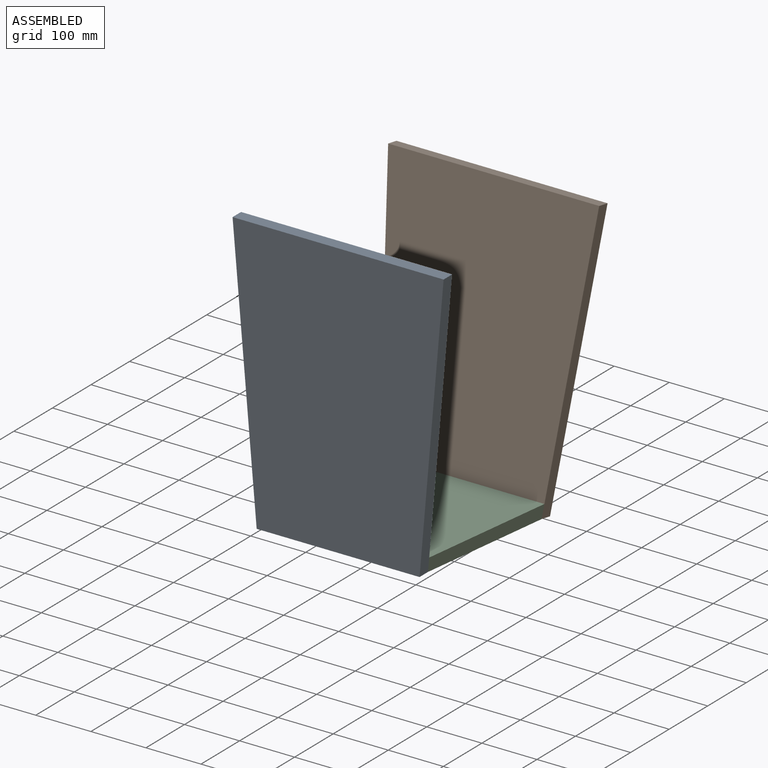
[diagram: assembled view]
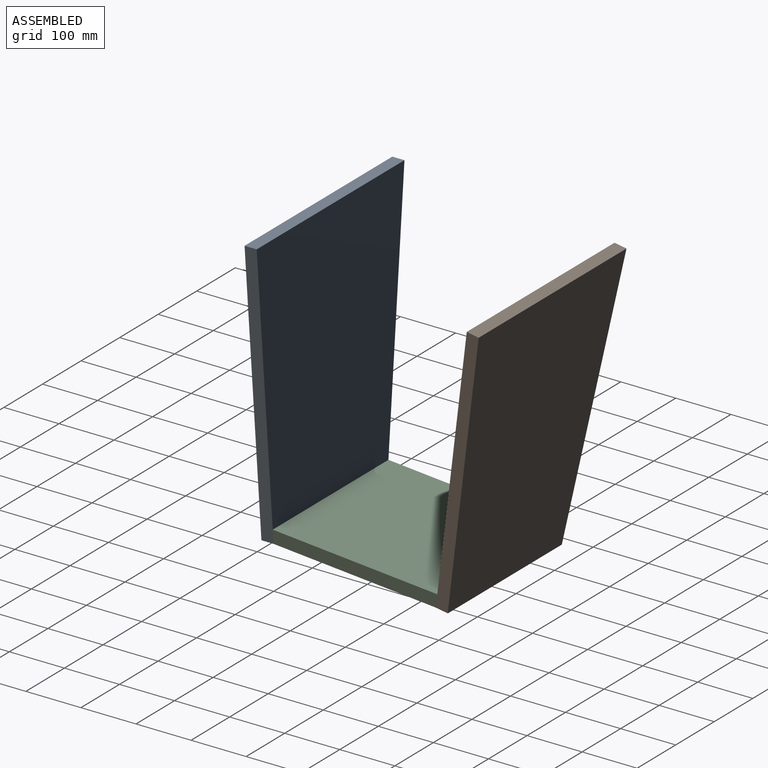
[diagram: assembled view, second angle]
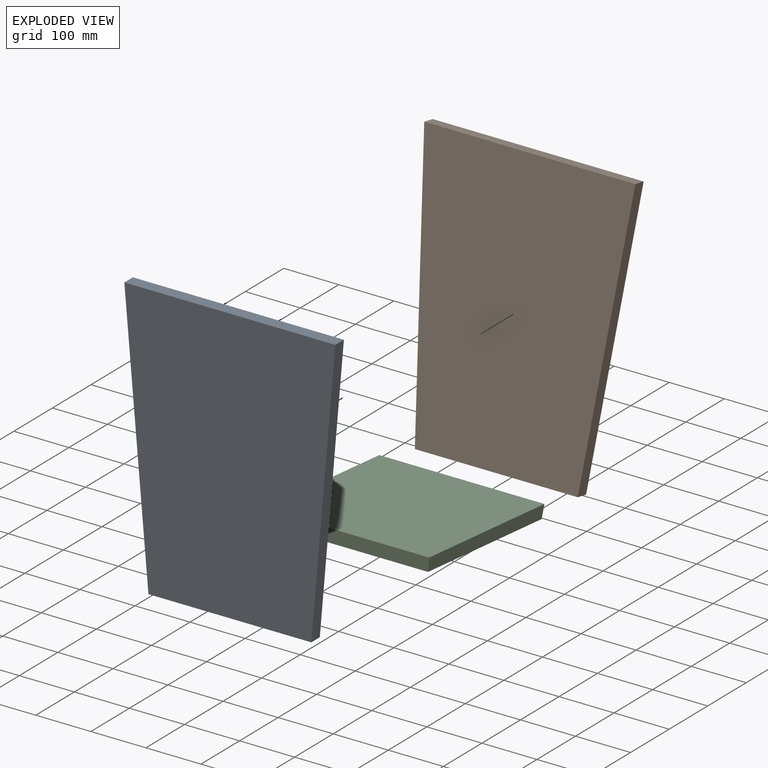
[diagram: exploded view]
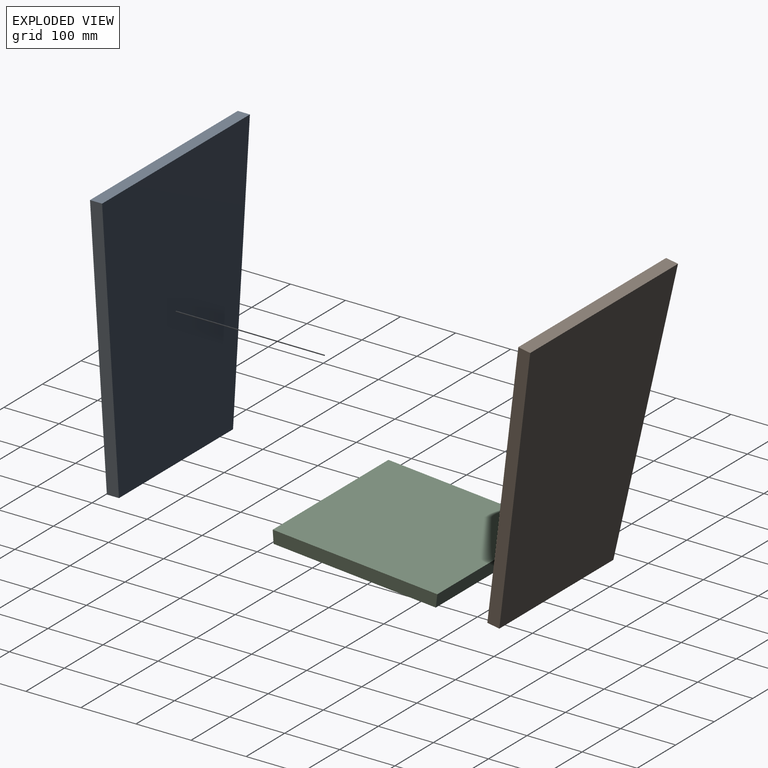
[diagram: exploded view, second angle]
ASSEMBLY  parts=3 mates=2
PART A: 6 faces, bbox 383.3x22x500 mm
  f0: plane 500x43.74mm, normal (-1,0,-0.09), area 11042mm2, adj f1,f3,f4,f5
  f1: plane 295.8x22mm, normal (0,0,-1), area 6507.6mm2, adj f0,f2,f4,f5
  f2: plane 500x43.74mm, normal (1,0,-0.09), area 11042mm2, adj f1,f3,f4,f5
  f3: plane 383.29x22mm, normal (0,0,1), area 8432.4mm2, adj f0,f2,f4,f5
  f4: plane 500x383.29mm, normal (0,-1,0), area 169772.4mm2, adj f0,f1,f2,f3
  f5: plane 500x383.29mm, normal (0,1,0), area 169772.4mm2, adj f0,f1,f2,f3
PART B: same geometry as A
PART C: 6 faces, bbox 300x300x24 mm
  f0: plane 300x24mm, normal (-1,0,-0.09), area 7176.9mm2, adj f1,f3,f4,f5
  f1: plane 300x24mm, normal (0,-1,-0.09), area 7176.9mm2, adj f0,f2,f4,f5
  f2: plane 300x24mm, normal (1,0,-0.09), area 7176.9mm2, adj f1,f3,f4,f5
  f3: plane 300x24mm, normal (0,1,-0.09), area 7176.9mm2, adj f0,f2,f4,f5
  f4: plane 295.8x295.8mm, normal (0,0,-1), area 87498mm2, adj f0,f1,f2,f3
  f5: plane 300x300mm, normal (0,0,1), area 90000mm2, adj f0,f1,f2,f3
PLACE A t=(0,-136.73,-90.53)mm
PLACE B rot(axis=(-1,0,0),10deg) t=(0,212.45,-123.01)mm
PLACE C rot(axis=(-1,0,0),5deg) t=(0,12.7,-268.67)mm
MATE fastened A.f5 <-> C.f1  axis (0,1,0) through (0,-136.73,-279.69)mm
MATE fastened B.f4 <-> C.f3  axis (0,-0.98,0.17) through (0,157.94,-305.47)mm
